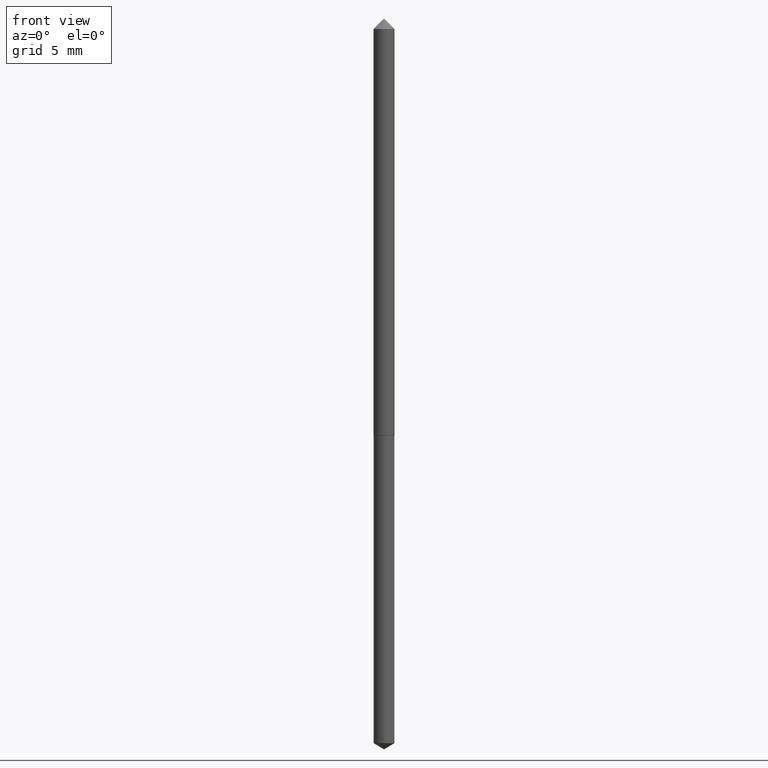
[diagram: clean part render]
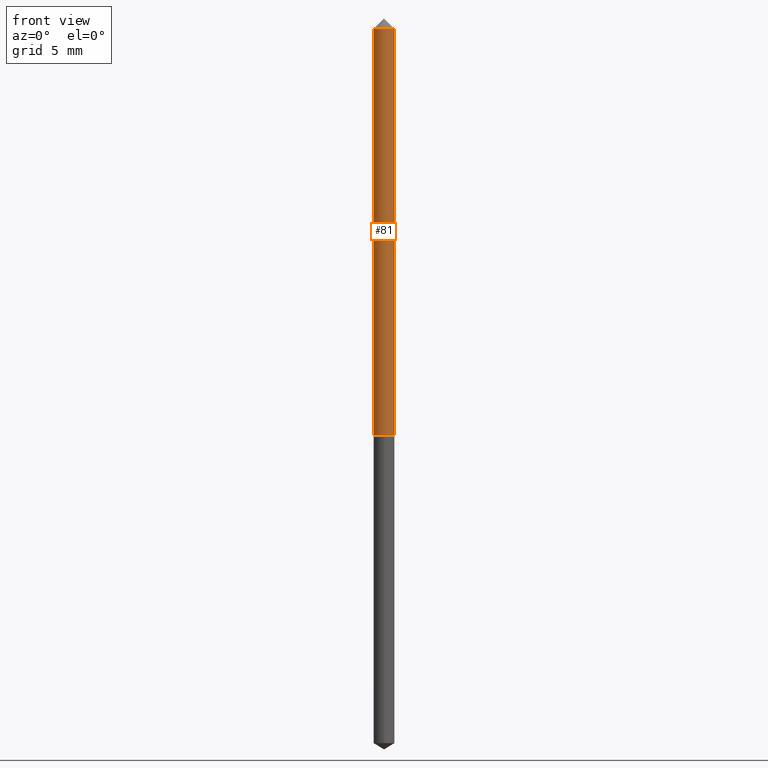
[diagram: same view with one face highlighted and labeled with its STEP entity id]
A machine part, front view. The second image highlights one B-rep face of the part: STEP entity #81.
In plain terms, the highlighted cylindrical surface (edge-blend (fillet) strip) has radius 0.4953 mm, axis along (-0, 0, 1).
Its self-contained STEP definition (entity closure, byte-faithful):
#43 = CARTESIAN_POINT ( 'NONE',  ( 0.01950000000000010059, -2.889200807892702791E-15, -0.7884999999999999787 ) ) ;
#45 = CIRCLE ( 'NONE', #220, 0.01950000000000010059 ) ;
#46 = DIRECTION ( 'NONE',  ( -2.445468806185136877E-29, 3.491481338843145188E-15, 1.000000000000000000 ) ) ;
#75 = CARTESIAN_POINT ( 'NONE',  ( -0.01950000000000004854, 1.385558334732198812E-16, -9.591923425997091666E-31 ) ) ;
#77 = DIRECTION ( 'NONE',  ( -2.445468806185136597E-29, 3.491481338843145583E-15, 1.000000000000000000 ) ) ;
#80 = DIRECTION ( 'NONE',  ( 1.000000000000000000, -6.982962677686271444E-15, 0.000000000000000000 ) ) ;
#81 = ADVANCED_FACE ( 'NONE', ( #240 ), #297, .T. ) ;
#91 = AXIS2_PLACEMENT_3D ( 'NONE', #169, #122, #194 ) ;
#95 = DIRECTION ( 'NONE',  ( 1.000000000000000000, -6.982962677686267499E-15, 4.876176775795936353E-29 ) ) ;
#101 = CARTESIAN_POINT ( 'NONE',  ( 0.000000000000000000, 0.000000000000000000, 0.000000000000000000 ) ) ;
#106 = CARTESIAN_POINT ( 'NONE',  ( 1.928252153676979944E-29, -2.753033035677819991E-15, -0.7884999999999999787 ) ) ;
#120 = ORIENTED_EDGE ( 'NONE', *, *, #137, .F. ) ;
#122 = DIRECTION ( 'NONE',  ( -2.445468806185136597E-29, 3.491481338843145583E-15, 1.000000000000000000 ) ) ;
#130 = EDGE_CURVE ( 'NONE', #148, #203, #354, .T. ) ;
#137 = EDGE_CURVE ( 'NONE', #315, #257, #270, .T. ) ;
#148 = VERTEX_POINT ( 'NONE', #43 ) ;
#162 = ORIENTED_EDGE ( 'NONE', *, *, #130, .T. ) ;
#168 = EDGE_LOOP ( 'NONE', ( #120, #340, #162, #201 ) ) ;
#169 = CARTESIAN_POINT ( 'NONE',  ( 7.642090019328603538E-31, -1.091087918388490390E-16, -0.03125000000000021511 ) ) ;
#178 = CARTESIAN_POINT ( 'NONE',  ( 0.01950000000000004854, -1.361677722148825539E-16, 9.508544712802099179E-31 ) ) ;
#186 = CARTESIAN_POINT ( 'NONE',  ( -0.01950000000000000344, -1.292515080285113506E-15, -0.03125000000000021511 ) ) ;
#194 = DIRECTION ( 'NONE',  ( 1.000000000000000000, -6.982962677686265922E-15, 0.000000000000000000 ) ) ;
#201 = ORIENTED_EDGE ( 'NONE', *, *, #350, .F. ) ;
#203 = VERTEX_POINT ( 'NONE', #332 ) ;
#220 = AXIS2_PLACEMENT_3D ( 'NONE', #106, #330, #80 ) ;
#236 = AXIS2_PLACEMENT_3D ( 'NONE', #101, #77, #95 ) ;
#240 = FACE_OUTER_BOUND ( 'NONE', #168, .T. ) ;
#257 = VERTEX_POINT ( 'NONE', #186 ) ;
#270 = LINE ( 'NONE', #75, #295 ) ;
#273 = CARTESIAN_POINT ( 'NONE',  ( -0.01950000000000010059, -2.614477202204599937E-15, -0.7884999999999999787 ) ) ;
#291 = DIRECTION ( 'NONE',  ( -2.445468806185136877E-29, 3.491481338843145188E-15, 1.000000000000000000 ) ) ;
#295 = VECTOR ( 'NONE', #291, 39.37007874015748143 ) ;
#297 = CYLINDRICAL_SURFACE ( 'NONE', #236, 0.01950000000000004854 ) ;
#302 = VECTOR ( 'NONE', #46, 39.37007874015748143 ) ;
#315 = VERTEX_POINT ( 'NONE', #273 ) ;
#320 = EDGE_CURVE ( 'NONE', #315, #148, #45, .T. ) ;
#330 = DIRECTION ( 'NONE',  ( -2.445468806185136597E-29, 3.491481338843145583E-15, 1.000000000000000000 ) ) ;
#332 = CARTESIAN_POINT ( 'NONE',  ( 0.01950000000000000344, -2.452765640537312601E-16, -0.03125000000000021511 ) ) ;
#336 = CIRCLE ( 'NONE', #91, 0.01950000000000000344 ) ;
#340 = ORIENTED_EDGE ( 'NONE', *, *, #320, .T. ) ;
#350 = EDGE_CURVE ( 'NONE', #257, #203, #336, .T. ) ;
#354 = LINE ( 'NONE', #178, #302 ) ;